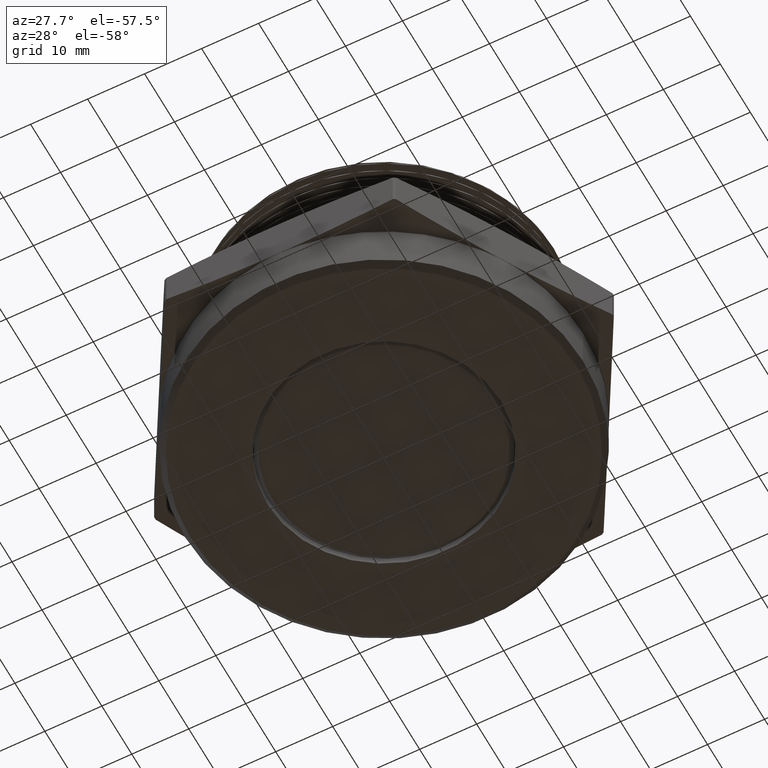
[diagram: clean part render]
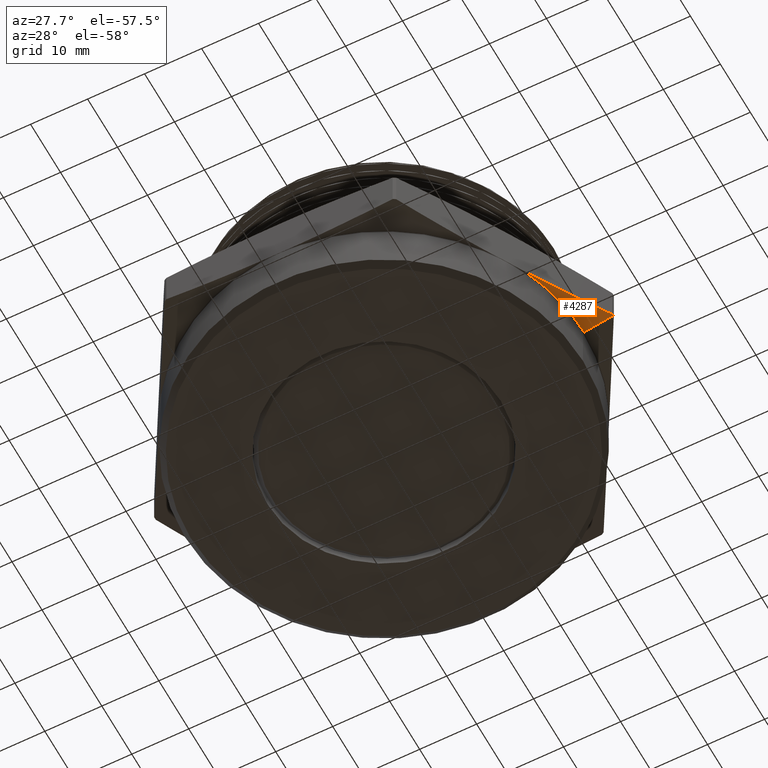
[diagram: same view with one face highlighted and labeled with its STEP entity id]
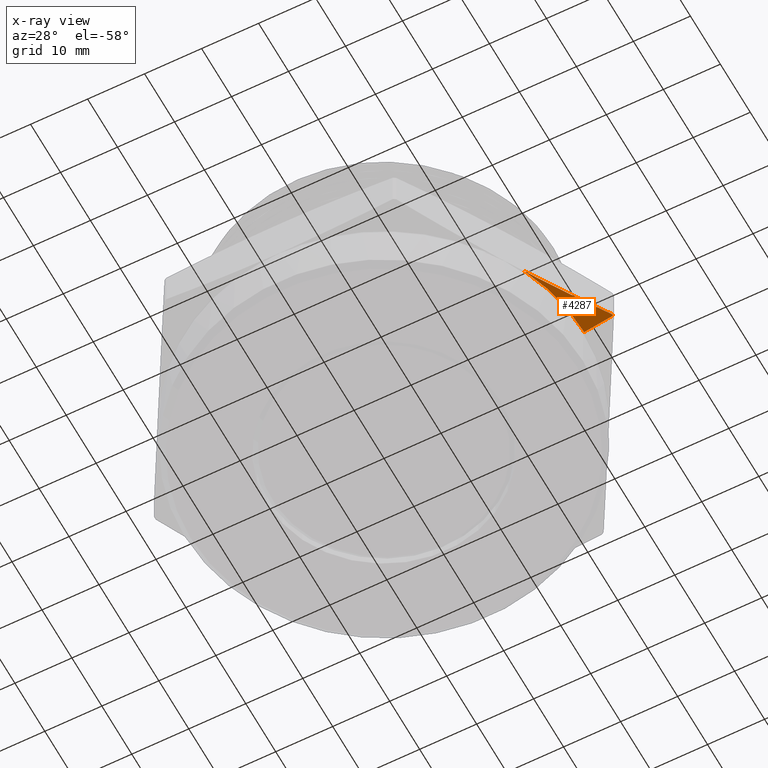
[diagram: x-ray of the same camera — body ghosted, the highlighted face saturated]
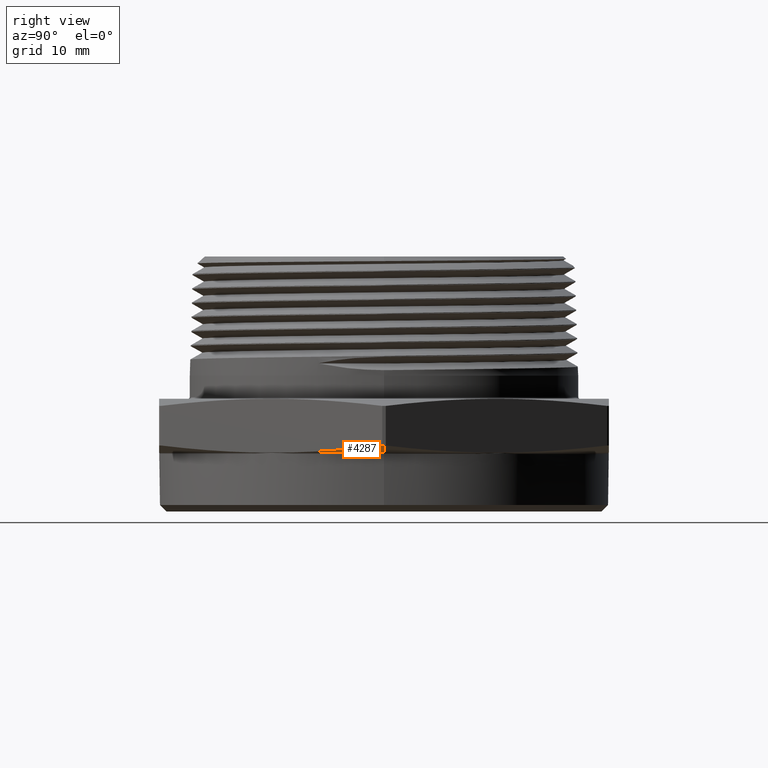
[diagram: same view with one face highlighted and labeled with its STEP entity id]
A machine part, auxiliary view. The second image highlights one B-rep face of the part: STEP entity #4287.
The next image is the same camera in x-ray: the body ghosted, the highlighted face saturated — about 0% of this face is hidden behind the body in this view.
A second angle (right view) of the same face is appended — the face is thin or edge-on in the first view.
In plain terms, the highlighted conical surface has half-angle 78 deg.
Its self-contained STEP definition (entity closure, byte-faithful):
#474 = CARTESIAN_POINT ( 'NONE',  ( 1.278169947836109400E-017, 0.0000000000000000000, 0.001683635675386918000 ) ) ;
#475 = DIRECTION ( 'NONE',  ( 1.254986547952384500E-016, 0.0000000000000000000, 1.000000000000000000 ) ) ;
#476 = DIRECTION ( 'NONE',  ( 1.000000000000000000, 0.0000000000000000000, -1.254285066723166600E-016 ) ) ;
#485 = CARTESIAN_POINT ( 'NONE',  ( 1.581713240271470400, 0.0000000000000000000, 0.04402193928946787600 ) ) ;
#486 = DIRECTION ( 'NONE',  ( 0.9781476007338071300, 0.0000000000000000000, 0.2079116908177526300 ) ) ;
#589 = CARTESIAN_POINT ( 'NONE',  ( 1.262820355187777900, -0.5627309839825921400, 0.001683635675387568100 ) ) ;
#591 = CARTESIAN_POINT ( 'NONE',  ( 1.382527182304421000, 0.0000000000000000000, 0.001683635675386744500 ) ) ;
#594 = CARTESIAN_POINT ( 'NONE',  ( 1.581713240271470400, 0.0000000000000000000, 0.04402193928946787600 ) ) ;
#595 = CARTESIAN_POINT ( 'NONE',  ( 1.581678705560180900, -0.01045212071999098700, 0.04402193928946787600 ) ) ;
#1199 = EDGE_CURVE ( 'NONE', #1976, #1978, #3388, .T. ) ;
#1201 = EDGE_CURVE ( 'NONE', #1978, #1981, #3389, .T. ) ;
#1561 = AXIS2_PLACEMENT_3D ( 'NONE', #474, #475, #476 ) ;
#1607 = AXIS2_PLACEMENT_3D ( 'NONE', #4881, #4882, #4883 ) ;
#1614 = AXIS2_PLACEMENT_3D ( 'NONE', #4913, #4914, #4912 ) ;
#1940 = EDGE_LOOP ( 'NONE', ( #3493, #3494, #2110, #2111 ) ) ;
#1976 = VERTEX_POINT ( 'NONE', #589 ) ;
#1978 = VERTEX_POINT ( 'NONE', #591 ) ;
#1981 = VERTEX_POINT ( 'NONE', #594 ) ;
#1982 = VERTEX_POINT ( 'NONE', #595 ) ;
#2110 = ORIENTED_EDGE ( 'NONE', *, *, #4226, .T. ) ;
#2111 = ORIENTED_EDGE ( 'NONE', *, *, #4225, .F. ) ;
#3015 = CIRCLE ( 'NONE', #1607, 1.581713240271470400 ) ;
#3034 = FACE_OUTER_BOUND ( 'NONE', #1940, .T. ) ;
#3041 = CONICAL_SURFACE ( 'NONE', #1614, 1.581713240271470400, 1.361356816555583800 ) ;
#3377 = VECTOR ( 'NONE', #486, 39.37007874015748900 ) ;
#3388 = CIRCLE ( 'NONE', #1561, 1.382527182304421000 ) ;
#3389 = LINE ( 'NONE', #485, #3377 ) ;
#3493 = ORIENTED_EDGE ( 'NONE', *, *, #1199, .T. ) ;
#3494 = ORIENTED_EDGE ( 'NONE', *, *, #1201, .T. ) ;
#4225 = EDGE_CURVE ( 'NONE', #1976, #1982, #4273, .T. ) ;
#4226 = EDGE_CURVE ( 'NONE', #1981, #1982, #3015, .T. ) ;
#4273 = B_SPLINE_CURVE_WITH_KNOTS ( 'NONE', 3,
 ( #4871, #4872, #4877, #4878, #4879, #4880 ),
 .UNSPECIFIED., .F., .F.,
 ( 4, 2, 4 ),
 ( 0.02351870699068973900, 0.03161770909014878500, 0.03971671118960783100 ),
 .UNSPECIFIED. ) ;
#4287 = ADVANCED_FACE ( 'NONE', ( #3034 ), #3041, .T. ) ;
#4871 = CARTESIAN_POINT ( 'NONE',  ( 1.262820355187777900, -0.5627309839825921400, 0.001683635675387568100 ) ) ;
#4872 = CARTESIAN_POINT ( 'NONE',  ( 1.315963413583177900, -0.4706845067721583400, 0.004037890645784549700 ) ) ;
#4877 = CARTESIAN_POINT ( 'NONE',  ( 1.369106471978579300, -0.3786380295617249300, 0.008994833965035977200 ) ) ;
#4878 = CARTESIAN_POINT ( 'NONE',  ( 1.475392588769379700, -0.1945450751408578100, 0.02341190238383955200 ) ) ;
#4879 = CARTESIAN_POINT ( 'NONE',  ( 1.528535647164781100, -0.1024985979304241400, 0.03285556819322704700 ) ) ;
#4880 = CARTESIAN_POINT ( 'NONE',  ( 1.581678705560180900, -0.01045212071999098700, 0.04402193928946787600 ) ) ;
#4881 = CARTESIAN_POINT ( 'NONE',  ( 5.524694162305898100E-018, 0.0000000000000000000, 0.04402193928946807700 ) ) ;
#4882 = DIRECTION ( 'NONE',  ( -1.254986547952384500E-016, -0.0000000000000000000, -1.000000000000000000 ) ) ;
#4883 = DIRECTION ( 'NONE',  ( -1.000000000000000000, 0.0000000000000000000, 1.241385413900429700E-016 ) ) ;
#4912 = DIRECTION ( 'NONE',  ( 1.000000000000000000, 0.0000000000000000000, -1.241385413900429700E-016 ) ) ;
#4913 = CARTESIAN_POINT ( 'NONE',  ( 5.524694162305898100E-018, 0.0000000000000000000, 0.04402193928946807700 ) ) ;
#4914 = DIRECTION ( 'NONE',  ( 1.254986547952384500E-016, 0.0000000000000000000, 1.000000000000000000 ) ) ;